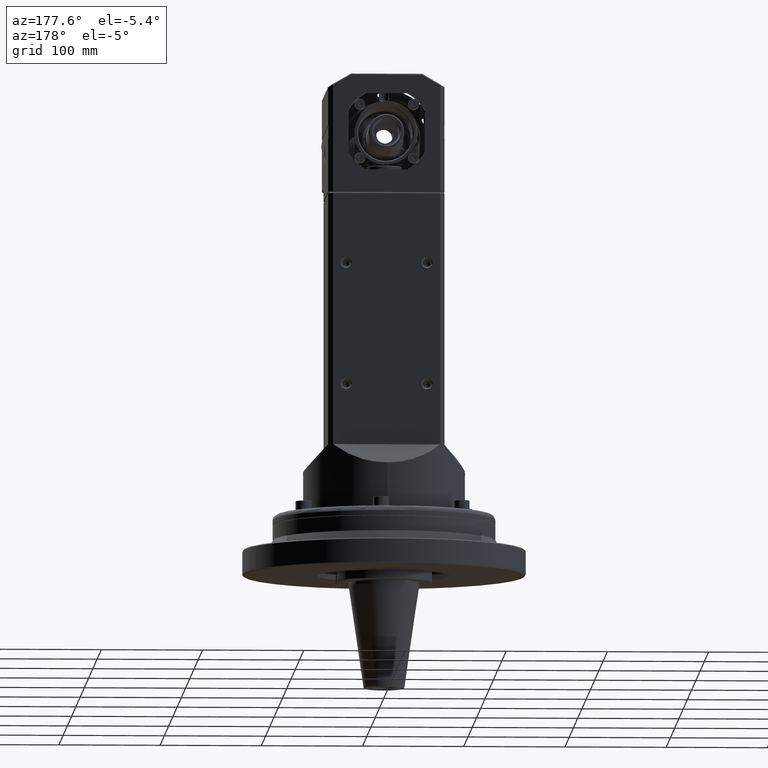
[diagram: clean part render]
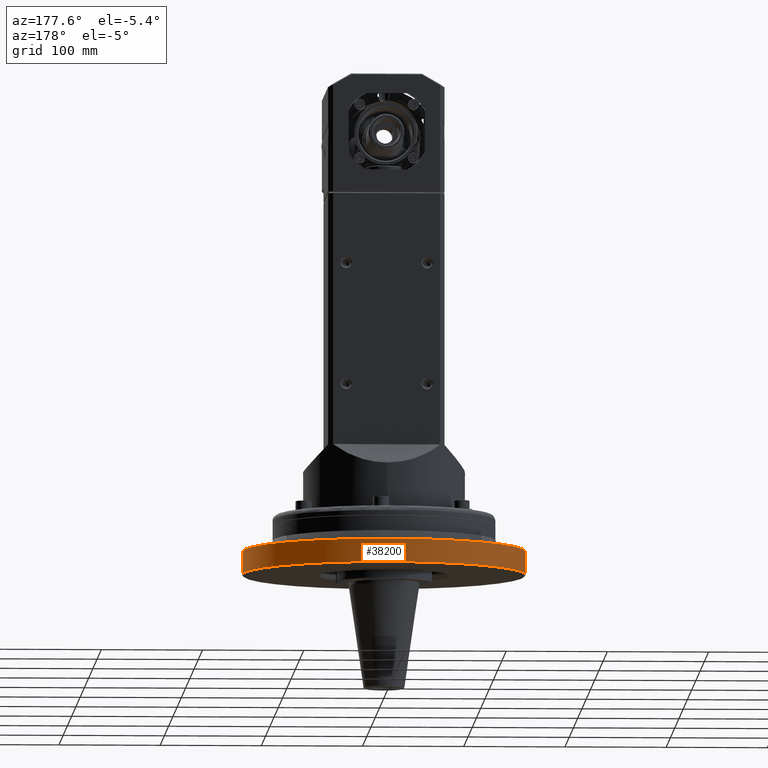
[diagram: same view with one face highlighted and labeled with its STEP entity id]
A machine part, auxiliary view. The second image highlights one B-rep face of the part: STEP entity #38200.
In plain terms, the highlighted cylindrical surface (bore or boss wall) has radius 140 mm, axis along (0, 0, 1).
Its self-contained STEP definition (entity closure, byte-faithful):
#6334=FACE_OUTER_BOUND('',#8799,.T.);
#8799=EDGE_LOOP('',(#34089,#34090,#34091,#34092,#34093,#34094));
#11406=LINE('',#73021,#13952);
#13952=VECTOR('',#51538,5.51181102362205);
#15758=CIRCLE('',#42027,5.51181102362205);
#15759=CIRCLE('',#42028,5.51181102362205);
#15760=CIRCLE('',#42030,5.51181102362205);
#15761=CIRCLE('',#42031,5.51181102362205);
#19151=VERTEX_POINT('',#73012);
#19152=VERTEX_POINT('',#73013);
#19153=VERTEX_POINT('',#73018);
#19154=VERTEX_POINT('',#73019);
#24201=EDGE_CURVE('',#19151,#19152,#15758,.T.);
#24202=EDGE_CURVE('',#19152,#19151,#15759,.T.);
#24204=EDGE_CURVE('',#19153,#19154,#15760,.T.);
#24205=EDGE_CURVE('',#19153,#19151,#11406,.T.);
#24206=EDGE_CURVE('',#19154,#19153,#15761,.T.);
#34089=ORIENTED_EDGE('',*,*,#24204,.F.);
#34090=ORIENTED_EDGE('',*,*,#24205,.T.);
#34091=ORIENTED_EDGE('',*,*,#24201,.T.);
#34092=ORIENTED_EDGE('',*,*,#24202,.T.);
#34093=ORIENTED_EDGE('',*,*,#24205,.F.);
#34094=ORIENTED_EDGE('',*,*,#24206,.F.);
#36289=CYLINDRICAL_SURFACE('',#42029,5.51181102362205);
#38200=ADVANCED_FACE('',(#6334),#36289,.T.);
#42027=AXIS2_PLACEMENT_3D('',#73014,#51529,#51530);
#42028=AXIS2_PLACEMENT_3D('',#73015,#51531,#51532);
#42029=AXIS2_PLACEMENT_3D('',#73017,#51534,#51535);
#42030=AXIS2_PLACEMENT_3D('',#73020,#51536,#51537);
#42031=AXIS2_PLACEMENT_3D('',#73022,#51539,#51540);
#51529=DIRECTION('center_axis',(0.,0.,1.));
#51530=DIRECTION('ref_axis',(0.,1.,0.));
#51531=DIRECTION('center_axis',(0.,0.,1.));
#51532=DIRECTION('ref_axis',(0.,1.,0.));
#51534=DIRECTION('center_axis',(0.,0.,1.));
#51535=DIRECTION('ref_axis',(0.,1.,0.));
#51536=DIRECTION('center_axis',(0.,0.,1.));
#51537=DIRECTION('ref_axis',(0.,1.,0.));
#51538=DIRECTION('',(0.,0.,-1.));
#51539=DIRECTION('center_axis',(0.,0.,1.));
#51540=DIRECTION('ref_axis',(0.,1.,0.));
#73012=CARTESIAN_POINT('',(-6.75002172758268E-16,-5.51181102362205,-1.33858227414724));
#73013=CARTESIAN_POINT('',(5.37346679517816E-14,5.51181098815756,-1.33858223868273));
#73014=CARTESIAN_POINT('Origin',(0.,0.,-1.33858227414724));
#73015=CARTESIAN_POINT('Origin',(0.,0.,-1.33858227414724));
#73017=CARTESIAN_POINT('Origin',(0.,0.,-1.44685039370079));
#73018=CARTESIAN_POINT('',(6.75002172758268E-16,-5.51181102362205,-0.433071360184646));
#73019=CARTESIAN_POINT('',(-1.65290837575092E-14,5.51181097980534,-0.433071404001351));
#73020=CARTESIAN_POINT('Origin',(0.,0.,-0.433071360184646));
#73021=CARTESIAN_POINT('',(6.75002172758384E-16,-5.51181102362205,-1.44685039370079));
#73022=CARTESIAN_POINT('Origin',(0.,0.,-0.433071360184646));